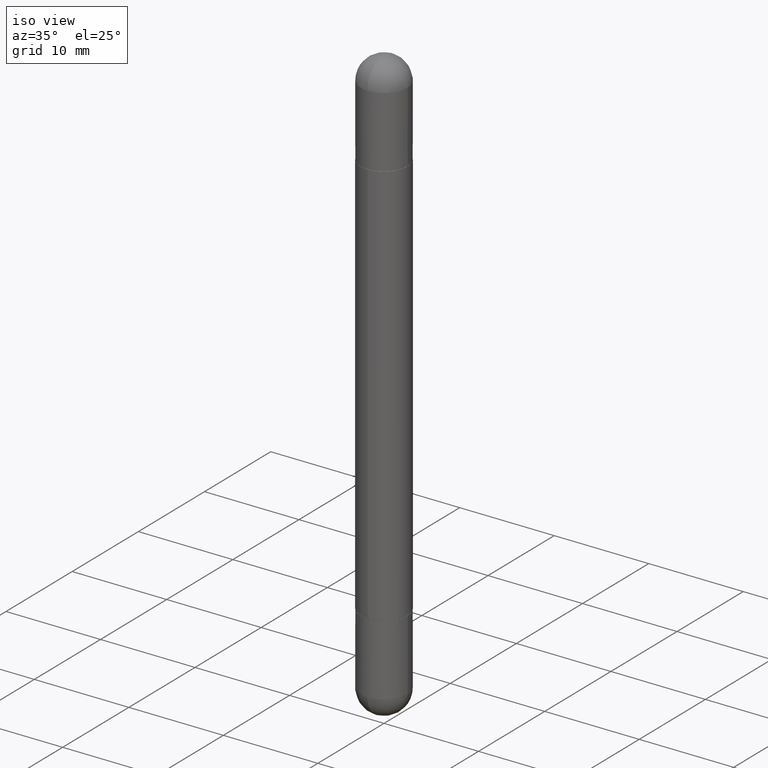
[diagram: clean part render]
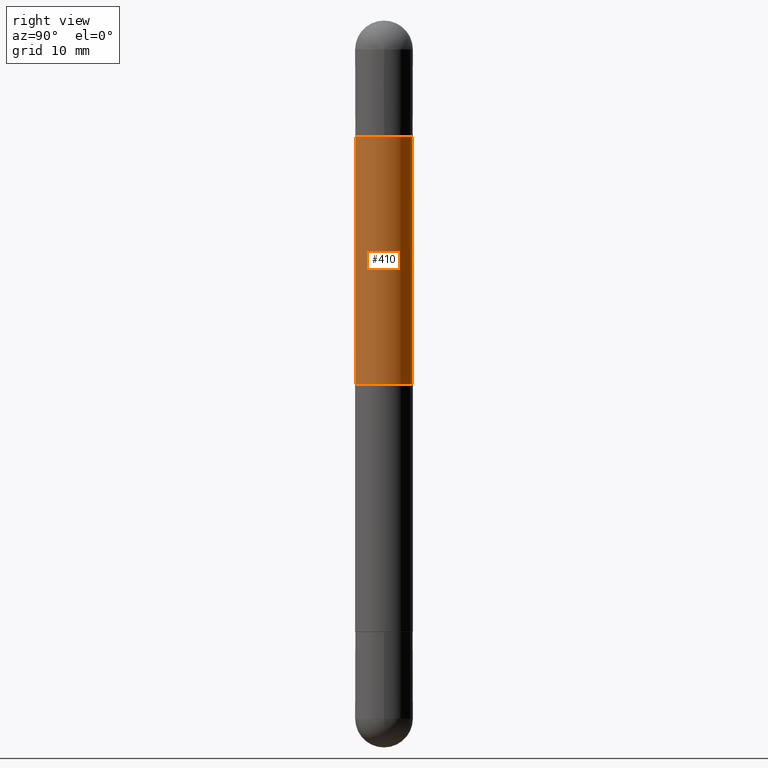
[diagram: tour spotlight — one face highlighted and labeled with its STEP entity id]
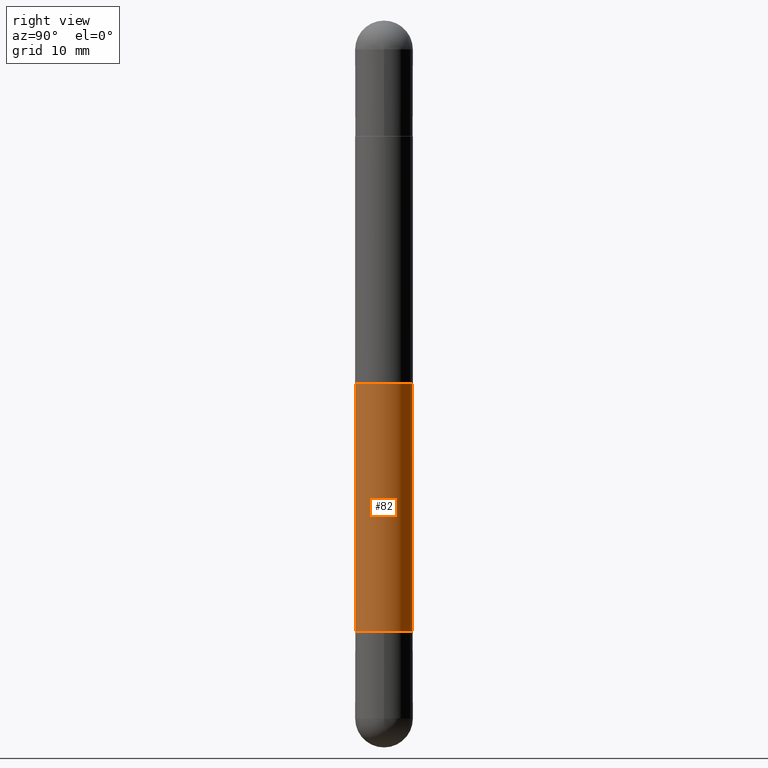
[diagram: tour spotlight — one face highlighted and labeled with its STEP entity id]
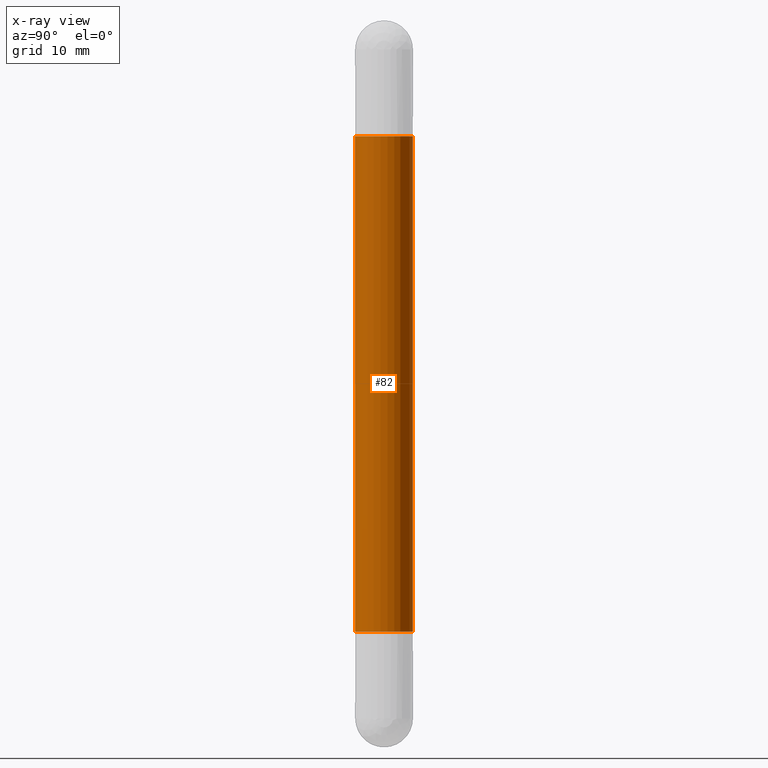
[diagram: x-ray of the same camera — body ghosted, this tour face saturated]
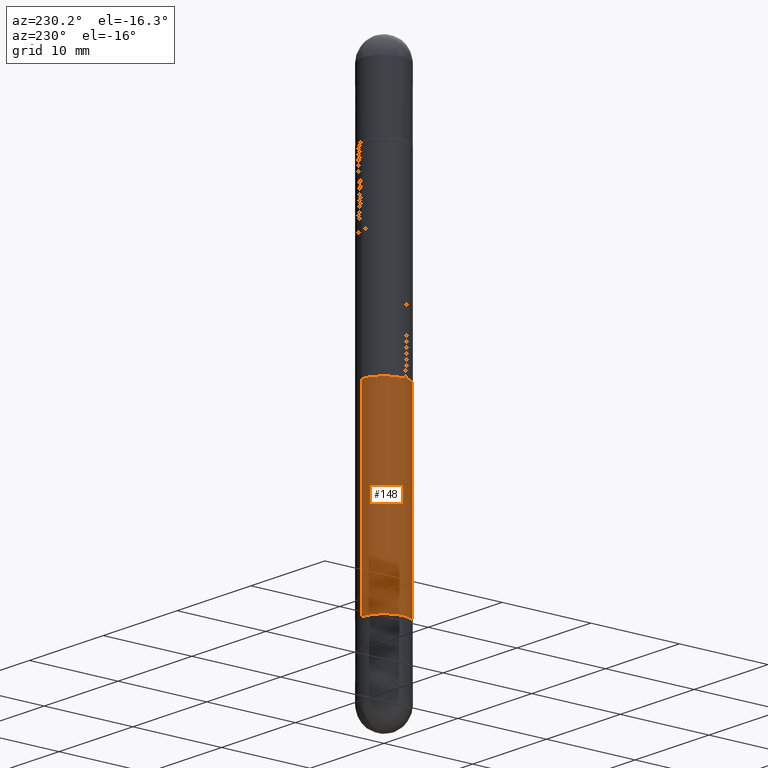
[diagram: tour spotlight — one face highlighted and labeled with its STEP entity id]
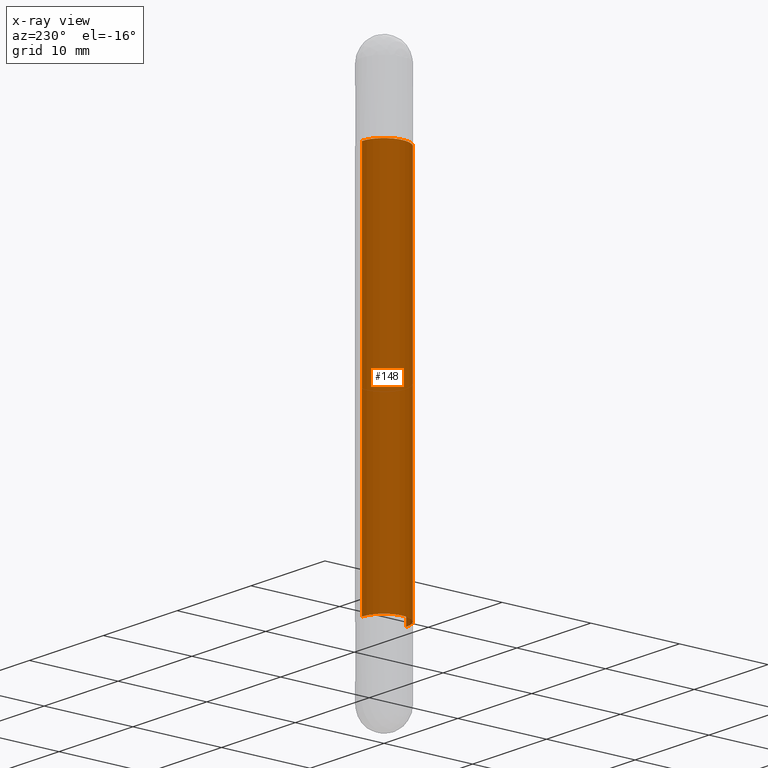
[diagram: x-ray of the same camera — body ghosted, this tour face saturated]
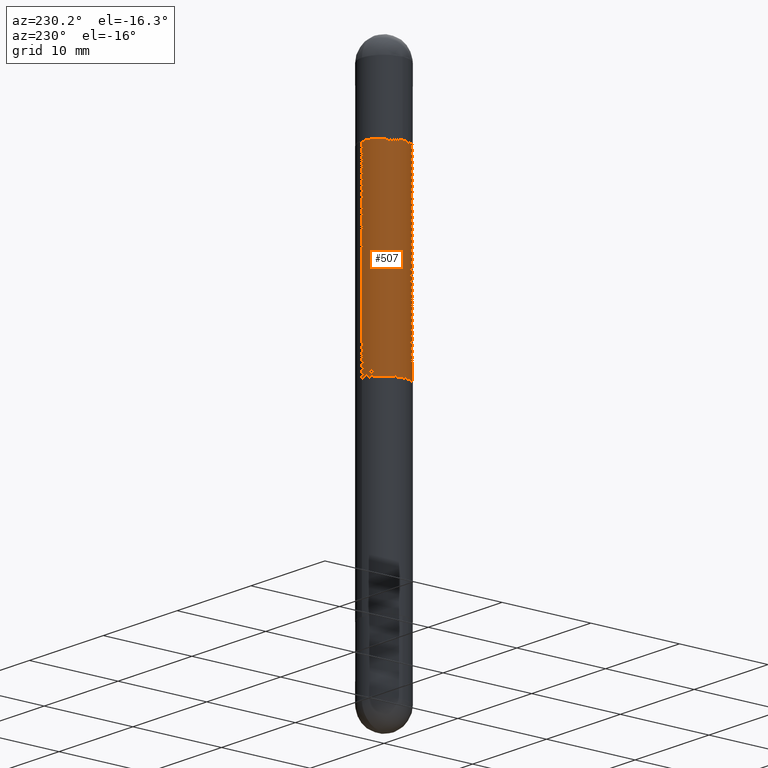
[diagram: tour spotlight — one face highlighted and labeled with its STEP entity id]
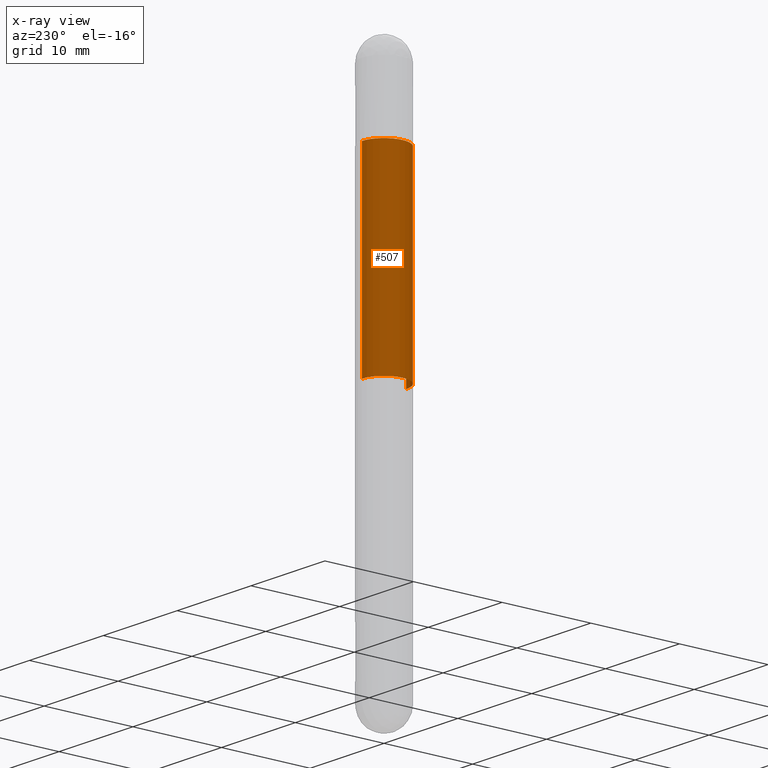
[diagram: x-ray of the same camera — body ghosted, this tour face saturated]
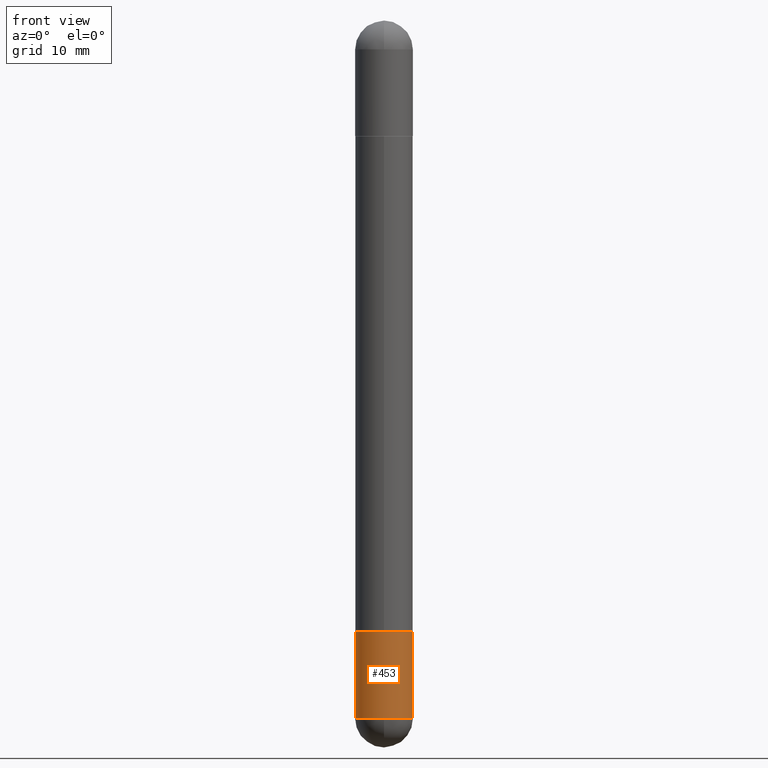
[diagram: tour spotlight — one face highlighted and labeled with its STEP entity id]
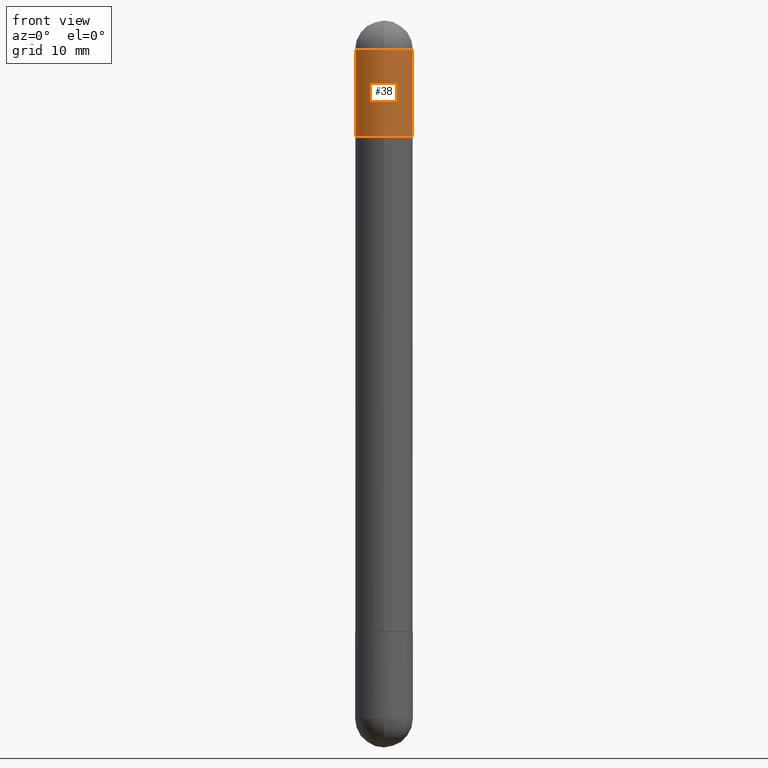
[diagram: tour spotlight — one face highlighted and labeled with its STEP entity id]
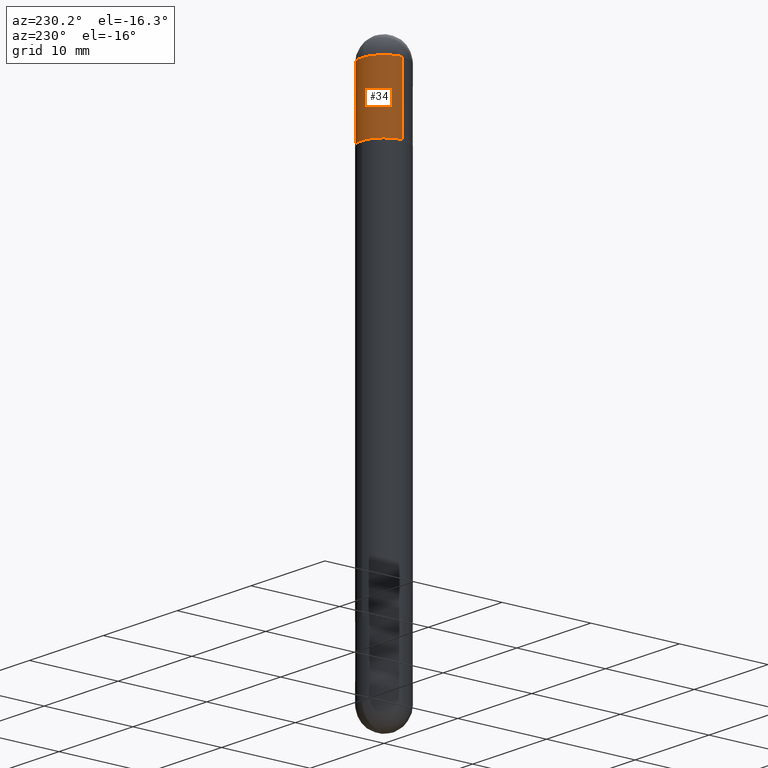
[diagram: tour spotlight — one face highlighted and labeled with its STEP entity id]
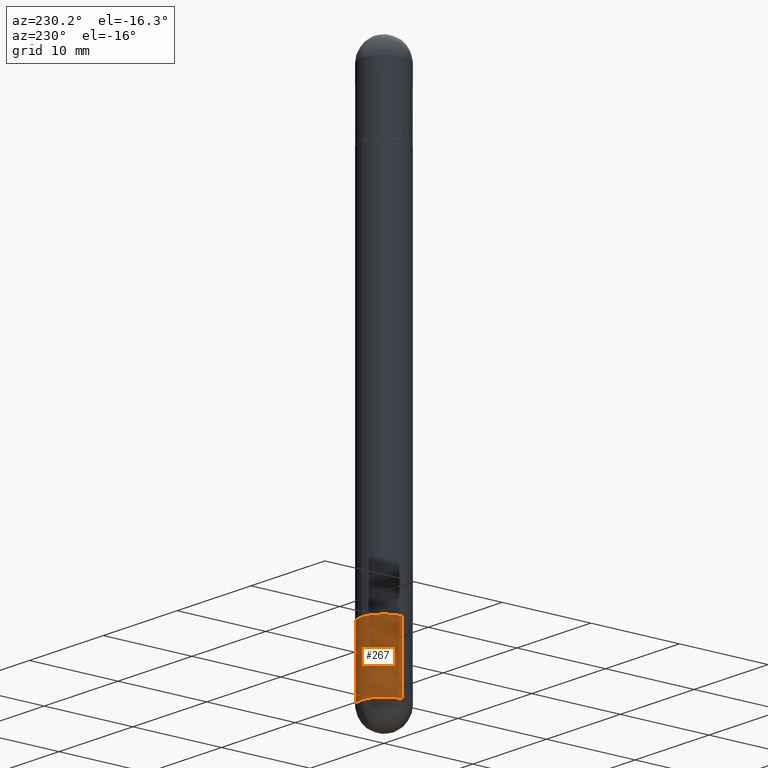
[diagram: tour spotlight — one face highlighted and labeled with its STEP entity id]
A machine part: a face-by-face anatomy tour. The part has 29 B-rep faces; the first image is the clean iso view, then the 8 largest visible faces are spotlighted one at a time (largest first), each with its STEP entity span.

Face 1 — right view, entity #410. In plain terms, the highlighted cylindrical surface (edge-blend (fillet) strip) has radius 2.5006 mm, axis along (-0, 0, -1).
Definition (entity closure, byte-faithful):
#11 = CARTESIAN_POINT ( 'NONE',  ( -6.874726756181635521E-16, -0.09845000000000754536, -0.3947000000000003839 ) ) ;
#20 = ORIENTED_EDGE ( 'NONE', *, *, #224, .F. ) ;
#70 = ORIENTED_EDGE ( 'NONE', *, *, #251, .F. ) ;
#86 = LINE ( 'NONE', #390, #814 ) ;
#101 = CARTESIAN_POINT ( 'NONE',  ( 6.754160278806080944E-16, 0.09845000000000013463, -2.480299999999999727 ) ) ;
#139 = VERTEX_POINT ( 'NONE', #11 ) ;
#224 = EDGE_CURVE ( 'NONE', #139, #440, #585, .T. ) ;
#230 = CARTESIAN_POINT ( 'NONE',  ( 6.754160278806588773E-16, 0.09844999999999579088, -1.240150000000000086 ) ) ;
#235 = EDGE_LOOP ( 'NONE', ( #70, #20, #533, #785 ) ) ;
#251 = EDGE_CURVE ( 'NONE', #440, #361, #407, .T. ) ;
#258 = DIRECTION ( 'NONE',  ( -0.000000000000000000, -0.000000000000000000, -1.000000000000000000 ) ) ;
#279 = CIRCLE ( 'NONE', #599, 0.09845000000000013463 ) ;
#329 = CARTESIAN_POINT ( 'NONE',  ( 3.033125776791602118E-29, -4.329419784973394178E-15, -1.240150000000000086 ) ) ;
#357 = DIRECTION ( 'NONE',  ( -2.445773315156716163E-29, 3.491045264664268947E-15, -1.000000000000000000 ) ) ;
#361 = VERTEX_POINT ( 'NONE', #230 ) ;
#390 = CARTESIAN_POINT ( 'NONE',  ( -6.874726756182137434E-16, -0.09845000000000013463, -2.480300000000001059 ) ) ;
#407 = LINE ( 'NONE', #101, #799 ) ;
#409 = CYLINDRICAL_SURFACE ( 'NONE', #786, 0.09845000000000013463 ) ;
#410 = ADVANCED_FACE ( 'NONE', ( #722 ), #409, .T. ) ;
#440 = VERTEX_POINT ( 'NONE', #592 ) ;
#499 = EDGE_CURVE ( 'NONE', #139, #560, #86, .T. ) ;
#503 = DIRECTION ( 'NONE',  ( -1.000000000000000000, 0.000000000000000000, 0.000000000000000000 ) ) ;
#527 = DIRECTION ( 'NONE',  ( -6.982962677686265922E-15, -1.000000000000000000, -3.468572871589965081E-15 ) ) ;
#533 = ORIENTED_EDGE ( 'NONE', *, *, #499, .T. ) ;
#560 = VERTEX_POINT ( 'NONE', #728 ) ;
#575 = EDGE_CURVE ( 'NONE', #361, #560, #279, .T. ) ;
#585 = CIRCLE ( 'NONE', #813, 0.09845000000000024565 ) ;
#592 = CARTESIAN_POINT ( 'NONE',  ( 6.754160278806600606E-16, 0.09844999999999295981, -0.3946999999999996622 ) ) ;
#599 = AXIS2_PLACEMENT_3D ( 'NONE', #329, #258, #503 ) ;
#602 = DIRECTION ( 'NONE',  ( -2.445773315156716163E-29, 3.491045264664269341E-15, -1.000000000000000000 ) ) ;
#647 = DIRECTION ( 'NONE',  ( -2.445773315156716163E-29, 3.491045264664268947E-15, -1.000000000000000000 ) ) ;
#659 = CARTESIAN_POINT ( 'NONE',  ( 5.100904826090848592E-29, -7.280924003983800483E-15, -0.3947000000000000508 ) ) ;
#665 = CARTESIAN_POINT ( 'NONE',  ( 0.000000000000000000, 0.000000000000000000, -2.480300000000000171 ) ) ;
#671 = DIRECTION ( 'NONE',  ( -6.982962677686265133E-15, -1.000000000000000000, -5.549716594543950441E-15 ) ) ;
#701 = DIRECTION ( 'NONE',  ( 2.445773315156716163E-29, -3.491045264664269341E-15, 1.000000000000000000 ) ) ;
#722 = FACE_OUTER_BOUND ( 'NONE', #235, .T. ) ;
#728 = CARTESIAN_POINT ( 'NONE',  ( -6.874726756181731170E-16, -0.09845000000000446450, -1.240150000000000086 ) ) ;
#785 = ORIENTED_EDGE ( 'NONE', *, *, #575, .F. ) ;
#786 = AXIS2_PLACEMENT_3D ( 'NONE', #665, #602, #671 ) ;
#799 = VECTOR ( 'NONE', #647, 39.37007874015748143 ) ;
#813 = AXIS2_PLACEMENT_3D ( 'NONE', #659, #701, #527 ) ;
#814 = VECTOR ( 'NONE', #357, 39.37007874015748143 ) ;

Face 2 — right view, entity #82. An x-ray twin of the same camera follows (body ghosted, this face saturated) — the face is partly hidden behind the body. In plain terms, the highlighted cylindrical surface (edge-blend (fillet) strip) has radius 2.5006 mm, axis along (-0, 0, -1).
Definition (entity closure, byte-faithful):
#19 = VECTOR ( 'NONE', #160, 39.37007874015748143 ) ;
#21 = AXIS2_PLACEMENT_3D ( 'NONE', #577, #496, #346 ) ;
#50 = DIRECTION ( 'NONE',  ( -6.982962677686265922E-15, -1.000000000000000000, -3.468572871589965081E-15 ) ) ;
#78 = AXIS2_PLACEMENT_3D ( 'NONE', #803, #118, #50 ) ;
#82 = ADVANCED_FACE ( 'NONE', ( #476 ), #417, .T. ) ;
#118 = DIRECTION ( 'NONE',  ( 2.445773315156716163E-29, -3.491045264664269341E-15, 1.000000000000000000 ) ) ;
#160 = DIRECTION ( 'NONE',  ( -2.445773315156716163E-29, 3.491045264664268947E-15, -1.000000000000000000 ) ) ;
#174 = CARTESIAN_POINT ( 'NONE',  ( -6.874726756181635521E-16, -0.09845000000000754536, -0.3947000000000003839 ) ) ;
#196 = CARTESIAN_POINT ( 'NONE',  ( -6.874726756181636507E-16, -0.09845000000000751761, -2.085599999999999898 ) ) ;
#205 = CARTESIAN_POINT ( 'NONE',  ( 6.754160278806600606E-16, 0.09844999999999295981, -0.3946999999999996622 ) ) ;
#223 = EDGE_CURVE ( 'NONE', #576, #264, #460, .T. ) ;
#250 = ORIENTED_EDGE ( 'NONE', *, *, #223, .F. ) ;
#264 = VERTEX_POINT ( 'NONE', #696 ) ;
#346 = DIRECTION ( 'NONE',  ( -6.982962677686265922E-15, -1.000000000000000000, 2.774858297271972065E-15 ) ) ;
#368 = VECTOR ( 'NONE', #373, 39.37007874015748143 ) ;
#373 = DIRECTION ( 'NONE',  ( -2.445773315156716163E-29, 3.491045264664268947E-15, -1.000000000000000000 ) ) ;
#374 = ORIENTED_EDGE ( 'NONE', *, *, #589, .T. ) ;
#397 = EDGE_LOOP ( 'NONE', ( #250, #607, #580, #374 ) ) ;
#404 = CIRCLE ( 'NONE', #78, 0.09845000000000024565 ) ;
#417 = CYLINDRICAL_SURFACE ( 'NONE', #626, 0.09845000000000013463 ) ;
#418 = VERTEX_POINT ( 'NONE', #174 ) ;
#460 = LINE ( 'NONE', #713, #19 ) ;
#463 = CARTESIAN_POINT ( 'NONE',  ( 0.000000000000000000, 0.000000000000000000, -2.480300000000000171 ) ) ;
#476 = FACE_OUTER_BOUND ( 'NONE', #397, .T. ) ;
#496 = DIRECTION ( 'NONE',  ( -2.445773315156716163E-29, 3.491045264664269341E-15, 1.000000000000000000 ) ) ;
#497 = LINE ( 'NONE', #609, #368 ) ;
#576 = VERTEX_POINT ( 'NONE', #205 ) ;
#577 = CARTESIAN_POINT ( 'NONE',  ( 5.100904826090848592E-29, -7.280924003983800483E-15, -2.085600000000000342 ) ) ;
#580 = ORIENTED_EDGE ( 'NONE', *, *, #679, .T. ) ;
#589 = EDGE_CURVE ( 'NONE', #808, #264, #640, .T. ) ;
#607 = ORIENTED_EDGE ( 'NONE', *, *, #615, .F. ) ;
#609 = CARTESIAN_POINT ( 'NONE',  ( -6.874726756182137434E-16, -0.09845000000000013463, -2.480300000000001059 ) ) ;
#615 = EDGE_CURVE ( 'NONE', #418, #576, #404, .T. ) ;
#626 = AXIS2_PLACEMENT_3D ( 'NONE', #463, #716, #788 ) ;
#640 = CIRCLE ( 'NONE', #21, 0.09845000000000024565 ) ;
#679 = EDGE_CURVE ( 'NONE', #418, #808, #497, .T. ) ;
#696 = CARTESIAN_POINT ( 'NONE',  ( 6.754160278806389586E-16, 0.09844999999999297369, -2.085600000000000342 ) ) ;
#713 = CARTESIAN_POINT ( 'NONE',  ( 6.754160278806080944E-16, 0.09845000000000013463, -2.480299999999999727 ) ) ;
#716 = DIRECTION ( 'NONE',  ( -2.445773315156716163E-29, 3.491045264664269341E-15, -1.000000000000000000 ) ) ;
#788 = DIRECTION ( 'NONE',  ( -6.982962677686265133E-15, -1.000000000000000000, -5.549716594543950441E-15 ) ) ;
#803 = CARTESIAN_POINT ( 'NONE',  ( 5.100904826090848592E-29, -7.280924003983800483E-15, -0.3947000000000000508 ) ) ;
#808 = VERTEX_POINT ( 'NONE', #196 ) ;

Face 3 — auxiliary view, entity #148. An x-ray twin of the same camera follows (body ghosted, this face saturated) — the face is partly hidden behind the body. In plain terms, the highlighted cylindrical surface (edge-blend (fillet) strip) has radius 2.5006 mm, axis along (-0, 0, -1).
Definition (entity closure, byte-faithful):
#5 = ORIENTED_EDGE ( 'NONE', *, *, #679, .F. ) ;
#19 = VECTOR ( 'NONE', #160, 39.37007874015748143 ) ;
#43 = ORIENTED_EDGE ( 'NONE', *, *, #223, .T. ) ;
#53 = EDGE_CURVE ( 'NONE', #264, #808, #276, .T. ) ;
#148 = ADVANCED_FACE ( 'NONE', ( #516 ), #595, .T. ) ;
#154 = CIRCLE ( 'NONE', #315, 0.09845000000000024565 ) ;
#160 = DIRECTION ( 'NONE',  ( -2.445773315156716163E-29, 3.491045264664268947E-15, -1.000000000000000000 ) ) ;
#174 = CARTESIAN_POINT ( 'NONE',  ( -6.874726756181635521E-16, -0.09845000000000754536, -0.3947000000000003839 ) ) ;
#196 = CARTESIAN_POINT ( 'NONE',  ( -6.874726756181636507E-16, -0.09845000000000751761, -2.085599999999999898 ) ) ;
#203 = ORIENTED_EDGE ( 'NONE', *, *, #53, .T. ) ;
#205 = CARTESIAN_POINT ( 'NONE',  ( 6.754160278806600606E-16, 0.09844999999999295981, -0.3946999999999996622 ) ) ;
#223 = EDGE_CURVE ( 'NONE', #576, #264, #460, .T. ) ;
#264 = VERTEX_POINT ( 'NONE', #696 ) ;
#276 = CIRCLE ( 'NONE', #666, 0.09845000000000024565 ) ;
#295 = DIRECTION ( 'NONE',  ( -6.982962677686265922E-15, -1.000000000000000000, 2.774858297271972065E-15 ) ) ;
#315 = AXIS2_PLACEMENT_3D ( 'NONE', #708, #341, #584 ) ;
#341 = DIRECTION ( 'NONE',  ( 2.445773315156716163E-29, -3.491045264664269341E-15, 1.000000000000000000 ) ) ;
#345 = ORIENTED_EDGE ( 'NONE', *, *, #644, .F. ) ;
#368 = VECTOR ( 'NONE', #373, 39.37007874015748143 ) ;
#373 = DIRECTION ( 'NONE',  ( -2.445773315156716163E-29, 3.491045264664268947E-15, -1.000000000000000000 ) ) ;
#380 = AXIS2_PLACEMENT_3D ( 'NONE', #777, #706, #660 ) ;
#416 = DIRECTION ( 'NONE',  ( -2.445773315156716163E-29, 3.491045264664269341E-15, 1.000000000000000000 ) ) ;
#418 = VERTEX_POINT ( 'NONE', #174 ) ;
#460 = LINE ( 'NONE', #713, #19 ) ;
#497 = LINE ( 'NONE', #609, #368 ) ;
#516 = FACE_OUTER_BOUND ( 'NONE', #632, .T. ) ;
#534 = CARTESIAN_POINT ( 'NONE',  ( 5.100904826090848592E-29, -7.280924003983800483E-15, -2.085600000000000342 ) ) ;
#576 = VERTEX_POINT ( 'NONE', #205 ) ;
#584 = DIRECTION ( 'NONE',  ( -6.982962677686265922E-15, -1.000000000000000000, -3.468572871589965081E-15 ) ) ;
#595 = CYLINDRICAL_SURFACE ( 'NONE', #380, 0.09845000000000013463 ) ;
#609 = CARTESIAN_POINT ( 'NONE',  ( -6.874726756182137434E-16, -0.09845000000000013463, -2.480300000000001059 ) ) ;
#632 = EDGE_LOOP ( 'NONE', ( #345, #43, #203, #5 ) ) ;
#644 = EDGE_CURVE ( 'NONE', #576, #418, #154, .T. ) ;
#660 = DIRECTION ( 'NONE',  ( -6.982962677686265133E-15, -1.000000000000000000, -5.549716594543950441E-15 ) ) ;
#666 = AXIS2_PLACEMENT_3D ( 'NONE', #534, #416, #295 ) ;
#679 = EDGE_CURVE ( 'NONE', #418, #808, #497, .T. ) ;
#696 = CARTESIAN_POINT ( 'NONE',  ( 6.754160278806389586E-16, 0.09844999999999297369, -2.085600000000000342 ) ) ;
#706 = DIRECTION ( 'NONE',  ( -2.445773315156716163E-29, 3.491045264664269341E-15, -1.000000000000000000 ) ) ;
#708 = CARTESIAN_POINT ( 'NONE',  ( 5.100904826090848592E-29, -7.280924003983800483E-15, -0.3947000000000000508 ) ) ;
#713 = CARTESIAN_POINT ( 'NONE',  ( 6.754160278806080944E-16, 0.09845000000000013463, -2.480299999999999727 ) ) ;
#777 = CARTESIAN_POINT ( 'NONE',  ( 0.000000000000000000, 0.000000000000000000, -2.480300000000000171 ) ) ;
#808 = VERTEX_POINT ( 'NONE', #196 ) ;

Face 4 — auxiliary view, entity #507. An x-ray twin of the same camera follows (body ghosted, this face saturated) — the face is partly hidden behind the body. In plain terms, the highlighted cylindrical surface (edge-blend (fillet) strip) has radius 2.5006 mm, axis along (-0, 0, -1).
Definition (entity closure, byte-faithful):
#11 = CARTESIAN_POINT ( 'NONE',  ( -6.874726756181635521E-16, -0.09845000000000754536, -0.3947000000000003839 ) ) ;
#40 = CARTESIAN_POINT ( 'NONE',  ( 3.033125776791602118E-29, -4.329419784973394178E-15, -1.240150000000000086 ) ) ;
#41 = DIRECTION ( 'NONE',  ( -2.445773315156716163E-29, 3.491045264664269341E-15, -1.000000000000000000 ) ) ;
#86 = LINE ( 'NONE', #390, #814 ) ;
#101 = CARTESIAN_POINT ( 'NONE',  ( 6.754160278806080944E-16, 0.09845000000000013463, -2.480299999999999727 ) ) ;
#139 = VERTEX_POINT ( 'NONE', #11 ) ;
#161 = AXIS2_PLACEMENT_3D ( 'NONE', #40, #807, #745 ) ;
#181 = ORIENTED_EDGE ( 'NONE', *, *, #499, .F. ) ;
#184 = DIRECTION ( 'NONE',  ( -6.982962677686265922E-15, -1.000000000000000000, -3.468572871589965081E-15 ) ) ;
#230 = CARTESIAN_POINT ( 'NONE',  ( 6.754160278806588773E-16, 0.09844999999999579088, -1.240150000000000086 ) ) ;
#232 = ORIENTED_EDGE ( 'NONE', *, *, #672, .F. ) ;
#251 = EDGE_CURVE ( 'NONE', #440, #361, #407, .T. ) ;
#357 = DIRECTION ( 'NONE',  ( -2.445773315156716163E-29, 3.491045264664268947E-15, -1.000000000000000000 ) ) ;
#360 = EDGE_CURVE ( 'NONE', #560, #361, #501, .T. ) ;
#361 = VERTEX_POINT ( 'NONE', #230 ) ;
#390 = CARTESIAN_POINT ( 'NONE',  ( -6.874726756182137434E-16, -0.09845000000000013463, -2.480300000000001059 ) ) ;
#407 = LINE ( 'NONE', #101, #799 ) ;
#412 = AXIS2_PLACEMENT_3D ( 'NONE', #430, #686, #184 ) ;
#430 = CARTESIAN_POINT ( 'NONE',  ( 5.100904826090848592E-29, -7.280924003983800483E-15, -0.3947000000000000508 ) ) ;
#440 = VERTEX_POINT ( 'NONE', #592 ) ;
#469 = ORIENTED_EDGE ( 'NONE', *, *, #251, .T. ) ;
#499 = EDGE_CURVE ( 'NONE', #139, #560, #86, .T. ) ;
#501 = CIRCLE ( 'NONE', #161, 0.09845000000000013463 ) ;
#507 = ADVANCED_FACE ( 'NONE', ( #668 ), #529, .T. ) ;
#529 = CYLINDRICAL_SURFACE ( 'NONE', #691, 0.09845000000000013463 ) ;
#560 = VERTEX_POINT ( 'NONE', #728 ) ;
#592 = CARTESIAN_POINT ( 'NONE',  ( 6.754160278806600606E-16, 0.09844999999999295981, -0.3946999999999996622 ) ) ;
#604 = DIRECTION ( 'NONE',  ( -6.982962677686265133E-15, -1.000000000000000000, -5.549716594543950441E-15 ) ) ;
#638 = ORIENTED_EDGE ( 'NONE', *, *, #360, .F. ) ;
#647 = DIRECTION ( 'NONE',  ( -2.445773315156716163E-29, 3.491045264664268947E-15, -1.000000000000000000 ) ) ;
#668 = FACE_OUTER_BOUND ( 'NONE', #773, .T. ) ;
#672 = EDGE_CURVE ( 'NONE', #440, #139, #750, .T. ) ;
#686 = DIRECTION ( 'NONE',  ( 2.445773315156716163E-29, -3.491045264664269341E-15, 1.000000000000000000 ) ) ;
#691 = AXIS2_PLACEMENT_3D ( 'NONE', #734, #41, #604 ) ;
#728 = CARTESIAN_POINT ( 'NONE',  ( -6.874726756181731170E-16, -0.09845000000000446450, -1.240150000000000086 ) ) ;
#734 = CARTESIAN_POINT ( 'NONE',  ( 0.000000000000000000, 0.000000000000000000, -2.480300000000000171 ) ) ;
#745 = DIRECTION ( 'NONE',  ( -1.000000000000000000, 0.000000000000000000, 0.000000000000000000 ) ) ;
#750 = CIRCLE ( 'NONE', #412, 0.09845000000000024565 ) ;
#773 = EDGE_LOOP ( 'NONE', ( #232, #469, #638, #181 ) ) ;
#799 = VECTOR ( 'NONE', #647, 39.37007874015748143 ) ;
#807 = DIRECTION ( 'NONE',  ( -0.000000000000000000, -0.000000000000000000, -1.000000000000000000 ) ) ;
#814 = VECTOR ( 'NONE', #357, 39.37007874015748143 ) ;

Face 5 — front view, entity #453. In plain terms, the highlighted cylindrical surface (edge-blend (fillet) strip) has radius 2.5006 mm, axis along (-0, 0, 1).
Definition (entity closure, byte-faithful):
#24 = CARTESIAN_POINT ( 'NONE',  ( -0.09844999999999999585, -7.101225570921008942E-15, -2.086600000000000232 ) ) ;
#31 = AXIS2_PLACEMENT_3D ( 'NONE', #707, #215, #168 ) ;
#56 = FACE_OUTER_BOUND ( 'NONE', #191, .T. ) ;
#61 = CARTESIAN_POINT ( 'NONE',  ( 0.09844999999999999585, -7.972797637248321554E-15, -2.086600000000000232 ) ) ;
#69 = DIRECTION ( 'NONE',  ( -2.445468806185136877E-29, 3.491481338843145188E-15, 1.000000000000000000 ) ) ;
#91 = AXIS2_PLACEMENT_3D ( 'NONE', #314, #424, #681 ) ;
#116 = DIRECTION ( 'NONE',  ( -2.445468806185136877E-29, 3.491481338843145188E-15, 1.000000000000000000 ) ) ;
#119 = CYLINDRICAL_SURFACE ( 'NONE', #122, 0.09845000000000000973 ) ;
#120 = CIRCLE ( 'NONE', #31, 0.09844999999999999585 ) ;
#122 = AXIS2_PLACEMENT_3D ( 'NONE', #375, #379, #622 ) ;
#129 = CARTESIAN_POINT ( 'NONE',  ( 5.824739876012068780E-29, -8.316184826923546689E-15, -2.381850000000000467 ) ) ;
#131 = CARTESIAN_POINT ( 'NONE',  ( -6.995293233557624958E-16, -0.09845000000000865559, -2.381850000000000023 ) ) ;
#156 = ORIENTED_EDGE ( 'NONE', *, *, #428, .T. ) ;
#162 = ORIENTED_EDGE ( 'NONE', *, *, #274, .T. ) ;
#168 = DIRECTION ( 'NONE',  ( 1.000000000000000000, -6.982962677686265922E-15, 0.000000000000000000 ) ) ;
#191 = EDGE_LOOP ( 'NONE', ( #611, #162, #583, #156, #376 ) ) ;
#215 = DIRECTION ( 'NONE',  ( -2.445468806185136597E-29, 3.491481338843145583E-15, 1.000000000000000000 ) ) ;
#220 = VERTEX_POINT ( 'NONE', #24 ) ;
#274 = EDGE_CURVE ( 'NONE', #574, #675, #411, .T. ) ;
#306 = DIRECTION ( 'NONE',  ( 1.000000000000000000, -6.982962677686273810E-15, 0.000000000000000000 ) ) ;
#308 = LINE ( 'NONE', #550, #569 ) ;
#314 = CARTESIAN_POINT ( 'NONE',  ( 5.824739876012068780E-29, -8.316184826923546689E-15, -2.381850000000000467 ) ) ;
#327 = VERTEX_POINT ( 'NONE', #61 ) ;
#330 = EDGE_CURVE ( 'NONE', #675, #494, #403, .T. ) ;
#362 = LINE ( 'NONE', #427, #704 ) ;
#375 = CARTESIAN_POINT ( 'NONE',  ( 0.000000000000000000, 0.000000000000000000, 0.000000000000000000 ) ) ;
#376 = ORIENTED_EDGE ( 'NONE', *, *, #406, .F. ) ;
#379 = DIRECTION ( 'NONE',  ( -2.445468806185136597E-29, 3.491481338843145583E-15, 1.000000000000000000 ) ) ;
#403 = CIRCLE ( 'NONE', #515, 0.09845000000000000973 ) ;
#406 = EDGE_CURVE ( 'NONE', #220, #327, #120, .T. ) ;
#411 = CIRCLE ( 'NONE', #91, 0.09845000000000000973 ) ;
#424 = DIRECTION ( 'NONE',  ( -2.445468806185136597E-29, 3.491481338843145583E-15, 1.000000000000000000 ) ) ;
#427 = CARTESIAN_POINT ( 'NONE',  ( 0.09845000000000000973, -6.874726756182130531E-16, 4.800596035771099214E-30 ) ) ;
#428 = EDGE_CURVE ( 'NONE', #494, #327, #362, .T. ) ;
#453 = ADVANCED_FACE ( 'NONE', ( #56 ), #119, .T. ) ;
#494 = VERTEX_POINT ( 'NONE', #563 ) ;
#515 = AXIS2_PLACEMENT_3D ( 'NONE', #129, #535, #306 ) ;
#535 = DIRECTION ( 'NONE',  ( -2.445468806185136597E-29, 3.491481338843145583E-15, 1.000000000000000000 ) ) ;
#550 = CARTESIAN_POINT ( 'NONE',  ( -0.09845000000000000973, 6.995293233558187021E-16, -4.842691596355954742E-30 ) ) ;
#563 = CARTESIAN_POINT ( 'NONE',  ( 0.09845000000000000973, -8.488227569895042768E-15, -2.381850000000000467 ) ) ;
#569 = VECTOR ( 'NONE', #69, 39.37007874015748143 ) ;
#574 = VERTEX_POINT ( 'NONE', #641 ) ;
#583 = ORIENTED_EDGE ( 'NONE', *, *, #330, .T. ) ;
#611 = ORIENTED_EDGE ( 'NONE', *, *, #767, .F. ) ;
#622 = DIRECTION ( 'NONE',  ( 1.000000000000000000, -6.982962677686266711E-15, 4.876176775795935793E-29 ) ) ;
#641 = CARTESIAN_POINT ( 'NONE',  ( -0.09845000000000000973, -7.101225570921009731E-15, -2.381850000000000467 ) ) ;
#675 = VERTEX_POINT ( 'NONE', #131 ) ;
#681 = DIRECTION ( 'NONE',  ( 1.000000000000000000, -6.982962677686273810E-15, 0.000000000000000000 ) ) ;
#704 = VECTOR ( 'NONE', #116, 39.37007874015748143 ) ;
#707 = CARTESIAN_POINT ( 'NONE',  ( 5.102715210985907397E-29, -7.285324961630108994E-15, -2.086600000000000232 ) ) ;
#767 = EDGE_CURVE ( 'NONE', #574, #220, #308, .T. ) ;

Face 6 — front view, entity #38. In plain terms, the highlighted cylindrical surface (edge-blend (fillet) strip) has radius 2.5006 mm, axis along (-0, 0, -1).
Definition (entity closure, byte-faithful):
#2 = VERTEX_POINT ( 'NONE', #238 ) ;
#38 = ADVANCED_FACE ( 'NONE', ( #228 ), #729, .T. ) ;
#48 = CIRCLE ( 'NONE', #715, 0.09844999999999999585 ) ;
#102 = CARTESIAN_POINT ( 'NONE',  ( 0.09844999999999999585, -7.972797637248321554E-15, -0.3936999999999999389 ) ) ;
#105 = CIRCLE ( 'NONE', #610, 0.09845000000000000973 ) ;
#112 = DIRECTION ( 'NONE',  ( -2.445468806185136877E-29, 3.491481338843145188E-15, -1.000000000000000000 ) ) ;
#127 = DIRECTION ( 'NONE',  ( 1.000000000000000000, -6.982962677686266711E-15, 0.000000000000000000 ) ) ;
#133 = DIRECTION ( 'NONE',  ( 2.445468806185136597E-29, -3.491481338843145583E-15, 1.000000000000000000 ) ) ;
#147 = EDGE_LOOP ( 'NONE', ( #513, #222, #474, #246, #790 ) ) ;
#176 = CARTESIAN_POINT ( 'NONE',  ( 0.000000000000000000, 0.000000000000000000, -2.480300000000000171 ) ) ;
#179 = CARTESIAN_POINT ( 'NONE',  ( 5.824739876012068780E-29, -8.316184826923546689E-15, -0.09844999999999987095 ) ) ;
#222 = ORIENTED_EDGE ( 'NONE', *, *, #635, .T. ) ;
#227 = DIRECTION ( 'NONE',  ( 2.445468806185136597E-29, -3.491481338843145583E-15, 1.000000000000000000 ) ) ;
#228 = FACE_OUTER_BOUND ( 'NONE', #147, .T. ) ;
#238 = CARTESIAN_POINT ( 'NONE',  ( -0.09845000000000000973, -7.125338866396221621E-15, -0.09844999999999987095 ) ) ;
#246 = ORIENTED_EDGE ( 'NONE', *, *, #522, .F. ) ;
#289 = CARTESIAN_POINT ( 'NONE',  ( 0.09845000000000000973, -6.874726756182130531E-16, -2.480300000000000171 ) ) ;
#293 = DIRECTION ( 'NONE',  ( -2.445468806185136877E-29, 3.491481338843145188E-15, -1.000000000000000000 ) ) ;
#303 = VERTEX_POINT ( 'NONE', #543 ) ;
#319 = CARTESIAN_POINT ( 'NONE',  ( 0.09845000000000000973, -8.488227569895042768E-15, -0.09844999999999987095 ) ) ;
#352 = EDGE_CURVE ( 'NONE', #816, #449, #48, .T. ) ;
#355 = DIRECTION ( 'NONE',  ( -2.445468806185136597E-29, 3.491481338843145583E-15, -1.000000000000000000 ) ) ;
#402 = AXIS2_PLACEMENT_3D ( 'NONE', #176, #355, #127 ) ;
#435 = CARTESIAN_POINT ( 'NONE',  ( -0.09844999999999999585, -7.125338866396220043E-15, -0.3936999999999999389 ) ) ;
#437 = EDGE_CURVE ( 'NONE', #2, #303, #683, .T. ) ;
#441 = VECTOR ( 'NONE', #293, 39.37007874015748143 ) ;
#449 = VERTEX_POINT ( 'NONE', #102 ) ;
#473 = DIRECTION ( 'NONE',  ( 1.000000000000000000, -6.982962677686273810E-15, 0.000000000000000000 ) ) ;
#474 = ORIENTED_EDGE ( 'NONE', *, *, #352, .T. ) ;
#486 = VERTEX_POINT ( 'NONE', #319 ) ;
#490 = VECTOR ( 'NONE', #112, 39.37007874015748143 ) ;
#513 = ORIENTED_EDGE ( 'NONE', *, *, #437, .F. ) ;
#522 = EDGE_CURVE ( 'NONE', #486, #449, #606, .T. ) ;
#539 = DIRECTION ( 'NONE',  ( 1.000000000000000000, -6.982962677686265922E-15, 0.000000000000000000 ) ) ;
#543 = CARTESIAN_POINT ( 'NONE',  ( -6.754160278805513950E-16, -0.09845000000000865559, -0.09845000000000021789 ) ) ;
#545 = EDGE_CURVE ( 'NONE', #303, #486, #105, .T. ) ;
#551 = CARTESIAN_POINT ( 'NONE',  ( 5.824739876012068780E-29, -8.316184826923546689E-15, -0.09844999999999987095 ) ) ;
#557 = AXIS2_PLACEMENT_3D ( 'NONE', #551, #133, #725 ) ;
#606 = LINE ( 'NONE', #289, #441 ) ;
#608 = LINE ( 'NONE', #677, #490 ) ;
#610 = AXIS2_PLACEMENT_3D ( 'NONE', #179, #227, #473 ) ;
#614 = CARTESIAN_POINT ( 'NONE',  ( 5.102715210985907397E-29, -7.285324961630108994E-15, -0.3936999999999999389 ) ) ;
#619 = DIRECTION ( 'NONE',  ( 2.445468806185136597E-29, -3.491481338843145583E-15, 1.000000000000000000 ) ) ;
#635 = EDGE_CURVE ( 'NONE', #2, #816, #608, .T. ) ;
#677 = CARTESIAN_POINT ( 'NONE',  ( -0.09845000000000000973, 6.754160278806074041E-16, -2.480300000000000171 ) ) ;
#683 = CIRCLE ( 'NONE', #557, 0.09845000000000000973 ) ;
#715 = AXIS2_PLACEMENT_3D ( 'NONE', #614, #619, #539 ) ;
#725 = DIRECTION ( 'NONE',  ( 1.000000000000000000, -6.982962677686273810E-15, 0.000000000000000000 ) ) ;
#729 = CYLINDRICAL_SURFACE ( 'NONE', #402, 0.09845000000000000973 ) ;
#790 = ORIENTED_EDGE ( 'NONE', *, *, #545, .F. ) ;
#816 = VERTEX_POINT ( 'NONE', #435 ) ;

Face 7 — auxiliary view, entity #34. In plain terms, the highlighted cylindrical surface (edge-blend (fillet) strip) has radius 2.5006 mm, axis along (-0, 0, -1).
Definition (entity closure, byte-faithful):
#2 = VERTEX_POINT ( 'NONE', #238 ) ;
#27 = DIRECTION ( 'NONE',  ( -2.445468806185136597E-29, 3.491481338843145583E-15, -1.000000000000000000 ) ) ;
#34 = ADVANCED_FACE ( 'NONE', ( #126 ), #347, .T. ) ;
#67 = EDGE_CURVE ( 'NONE', #97, #2, #770, .T. ) ;
#97 = VERTEX_POINT ( 'NONE', #505 ) ;
#102 = CARTESIAN_POINT ( 'NONE',  ( 0.09844999999999999585, -7.972797637248321554E-15, -0.3936999999999999389 ) ) ;
#112 = DIRECTION ( 'NONE',  ( -2.445468806185136877E-29, 3.491481338843145188E-15, -1.000000000000000000 ) ) ;
#115 = ORIENTED_EDGE ( 'NONE', *, *, #720, .T. ) ;
#121 = CIRCLE ( 'NONE', #787, 0.09844999999999999585 ) ;
#126 = FACE_OUTER_BOUND ( 'NONE', #358, .T. ) ;
#164 = EDGE_CURVE ( 'NONE', #486, #97, #556, .T. ) ;
#233 = DIRECTION ( 'NONE',  ( 1.000000000000000000, -6.982962677686273810E-15, 0.000000000000000000 ) ) ;
#237 = DIRECTION ( 'NONE',  ( 2.445468806185136597E-29, -3.491481338843145583E-15, 1.000000000000000000 ) ) ;
#238 = CARTESIAN_POINT ( 'NONE',  ( -0.09845000000000000973, -7.125338866396221621E-15, -0.09844999999999987095 ) ) ;
#272 = ORIENTED_EDGE ( 'NONE', *, *, #164, .F. ) ;
#277 = AXIS2_PLACEMENT_3D ( 'NONE', #396, #467, #348 ) ;
#289 = CARTESIAN_POINT ( 'NONE',  ( 0.09845000000000000973, -6.874726756182130531E-16, -2.480300000000000171 ) ) ;
#293 = DIRECTION ( 'NONE',  ( -2.445468806185136877E-29, 3.491481338843145188E-15, -1.000000000000000000 ) ) ;
#311 = DIRECTION ( 'NONE',  ( 1.000000000000000000, -6.982962677686265922E-15, 0.000000000000000000 ) ) ;
#319 = CARTESIAN_POINT ( 'NONE',  ( 0.09845000000000000973, -8.488227569895042768E-15, -0.09844999999999987095 ) ) ;
#347 = CYLINDRICAL_SURFACE ( 'NONE', #553, 0.09845000000000000973 ) ;
#348 = DIRECTION ( 'NONE',  ( 1.000000000000000000, -6.982962677686273810E-15, 0.000000000000000000 ) ) ;
#358 = EDGE_LOOP ( 'NONE', ( #680, #519, #272, #747, #115 ) ) ;
#396 = CARTESIAN_POINT ( 'NONE',  ( 5.824739876012068780E-29, -8.316184826923546689E-15, -0.09844999999999987095 ) ) ;
#435 = CARTESIAN_POINT ( 'NONE',  ( -0.09844999999999999585, -7.125338866396220043E-15, -0.3936999999999999389 ) ) ;
#441 = VECTOR ( 'NONE', #293, 39.37007874015748143 ) ;
#449 = VERTEX_POINT ( 'NONE', #102 ) ;
#467 = DIRECTION ( 'NONE',  ( 2.445468806185136597E-29, -3.491481338843145583E-15, 1.000000000000000000 ) ) ;
#480 = DIRECTION ( 'NONE',  ( 2.445468806185136597E-29, -3.491481338843145583E-15, 1.000000000000000000 ) ) ;
#486 = VERTEX_POINT ( 'NONE', #319 ) ;
#490 = VECTOR ( 'NONE', #112, 39.37007874015748143 ) ;
#505 = CARTESIAN_POINT ( 'NONE',  ( 6.874726756182700483E-16, 0.09844999999999154427, -0.09844999999999953788 ) ) ;
#514 = AXIS2_PLACEMENT_3D ( 'NONE', #796, #480, #233 ) ;
#519 = ORIENTED_EDGE ( 'NONE', *, *, #67, .F. ) ;
#522 = EDGE_CURVE ( 'NONE', #486, #449, #606, .T. ) ;
#530 = CARTESIAN_POINT ( 'NONE',  ( 0.000000000000000000, 0.000000000000000000, -2.480300000000000171 ) ) ;
#553 = AXIS2_PLACEMENT_3D ( 'NONE', #530, #27, #717 ) ;
#556 = CIRCLE ( 'NONE', #277, 0.09845000000000000973 ) ;
#606 = LINE ( 'NONE', #289, #441 ) ;
#608 = LINE ( 'NONE', #677, #490 ) ;
#635 = EDGE_CURVE ( 'NONE', #2, #816, #608, .T. ) ;
#677 = CARTESIAN_POINT ( 'NONE',  ( -0.09845000000000000973, 6.754160278806074041E-16, -2.480300000000000171 ) ) ;
#678 = CARTESIAN_POINT ( 'NONE',  ( 5.102715210985907397E-29, -7.285324961630108994E-15, -0.3936999999999999389 ) ) ;
#680 = ORIENTED_EDGE ( 'NONE', *, *, #635, .F. ) ;
#717 = DIRECTION ( 'NONE',  ( 1.000000000000000000, -6.982962677686266711E-15, 0.000000000000000000 ) ) ;
#720 = EDGE_CURVE ( 'NONE', #449, #816, #121, .T. ) ;
#747 = ORIENTED_EDGE ( 'NONE', *, *, #522, .T. ) ;
#770 = CIRCLE ( 'NONE', #514, 0.09845000000000000973 ) ;
#787 = AXIS2_PLACEMENT_3D ( 'NONE', #678, #237, #311 ) ;
#796 = CARTESIAN_POINT ( 'NONE',  ( 5.824739876012068780E-29, -8.316184826923546689E-15, -0.09844999999999987095 ) ) ;
#816 = VERTEX_POINT ( 'NONE', #435 ) ;

Face 8 — auxiliary view, entity #267. In plain terms, the highlighted cylindrical surface (edge-blend (fillet) strip) has radius 2.5006 mm, axis along (-0, 0, 1).
Definition (entity closure, byte-faithful):
#16 = CARTESIAN_POINT ( 'NONE',  ( 5.824739876012068780E-29, -8.316184826923546689E-15, -2.381850000000000467 ) ) ;
#18 = AXIS2_PLACEMENT_3D ( 'NONE', #71, #106, #781 ) ;
#24 = CARTESIAN_POINT ( 'NONE',  ( -0.09844999999999999585, -7.101225570921008942E-15, -2.086600000000000232 ) ) ;
#61 = CARTESIAN_POINT ( 'NONE',  ( 0.09844999999999999585, -7.972797637248321554E-15, -2.086600000000000232 ) ) ;
#62 = AXIS2_PLACEMENT_3D ( 'NONE', #548, #240, #732 ) ;
#69 = DIRECTION ( 'NONE',  ( -2.445468806185136877E-29, 3.491481338843145188E-15, 1.000000000000000000 ) ) ;
#71 = CARTESIAN_POINT ( 'NONE',  ( 5.824739876012068780E-29, -8.316184826923546689E-15, -2.381850000000000467 ) ) ;
#74 = EDGE_CURVE ( 'NONE', #494, #322, #173, .T. ) ;
#98 = EDGE_CURVE ( 'NONE', #322, #574, #733, .T. ) ;
#106 = DIRECTION ( 'NONE',  ( -2.445468806185136597E-29, 3.491481338843145583E-15, 1.000000000000000000 ) ) ;
#116 = DIRECTION ( 'NONE',  ( -2.445468806185136877E-29, 3.491481338843145188E-15, 1.000000000000000000 ) ) ;
#137 = EDGE_LOOP ( 'NONE', ( #354, #349, #528, #339, #738 ) ) ;
#144 = FACE_OUTER_BOUND ( 'NONE', #137, .T. ) ;
#173 = CIRCLE ( 'NONE', #18, 0.09845000000000000973 ) ;
#220 = VERTEX_POINT ( 'NONE', #24 ) ;
#240 = DIRECTION ( 'NONE',  ( -2.445468806185136597E-29, 3.491481338843145583E-15, 1.000000000000000000 ) ) ;
#267 = ADVANCED_FACE ( 'NONE', ( #144 ), #337, .T. ) ;
#305 = EDGE_CURVE ( 'NONE', #327, #220, #639, .T. ) ;
#308 = LINE ( 'NONE', #550, #569 ) ;
#322 = VERTEX_POINT ( 'NONE', #431 ) ;
#327 = VERTEX_POINT ( 'NONE', #61 ) ;
#333 = CARTESIAN_POINT ( 'NONE',  ( 0.000000000000000000, 0.000000000000000000, 0.000000000000000000 ) ) ;
#337 = CYLINDRICAL_SURFACE ( 'NONE', #772, 0.09845000000000000973 ) ;
#339 = ORIENTED_EDGE ( 'NONE', *, *, #428, .F. ) ;
#349 = ORIENTED_EDGE ( 'NONE', *, *, #767, .T. ) ;
#354 = ORIENTED_EDGE ( 'NONE', *, *, #98, .T. ) ;
#362 = LINE ( 'NONE', #427, #704 ) ;
#401 = DIRECTION ( 'NONE',  ( -2.445468806185136597E-29, 3.491481338843145583E-15, 1.000000000000000000 ) ) ;
#427 = CARTESIAN_POINT ( 'NONE',  ( 0.09845000000000000973, -6.874726756182130531E-16, 4.800596035771099214E-30 ) ) ;
#428 = EDGE_CURVE ( 'NONE', #494, #327, #362, .T. ) ;
#431 = CARTESIAN_POINT ( 'NONE',  ( 6.874726756182700483E-16, 0.09844999999999154427, -2.381850000000000911 ) ) ;
#444 = DIRECTION ( 'NONE',  ( -2.445468806185136597E-29, 3.491481338843145583E-15, 1.000000000000000000 ) ) ;
#494 = VERTEX_POINT ( 'NONE', #563 ) ;
#528 = ORIENTED_EDGE ( 'NONE', *, *, #305, .F. ) ;
#548 = CARTESIAN_POINT ( 'NONE',  ( 5.102715210985907397E-29, -7.285324961630108994E-15, -2.086600000000000232 ) ) ;
#550 = CARTESIAN_POINT ( 'NONE',  ( -0.09845000000000000973, 6.995293233558187021E-16, -4.842691596355954742E-30 ) ) ;
#563 = CARTESIAN_POINT ( 'NONE',  ( 0.09845000000000000973, -8.488227569895042768E-15, -2.381850000000000467 ) ) ;
#567 = DIRECTION ( 'NONE',  ( 1.000000000000000000, -6.982962677686266711E-15, 4.876176775795935793E-29 ) ) ;
#569 = VECTOR ( 'NONE', #69, 39.37007874015748143 ) ;
#571 = DIRECTION ( 'NONE',  ( 1.000000000000000000, -6.982962677686273810E-15, 0.000000000000000000 ) ) ;
#574 = VERTEX_POINT ( 'NONE', #641 ) ;
#639 = CIRCLE ( 'NONE', #62, 0.09844999999999999585 ) ;
#641 = CARTESIAN_POINT ( 'NONE',  ( -0.09845000000000000973, -7.101225570921009731E-15, -2.381850000000000467 ) ) ;
#702 = AXIS2_PLACEMENT_3D ( 'NONE', #16, #401, #571 ) ;
#704 = VECTOR ( 'NONE', #116, 39.37007874015748143 ) ;
#732 = DIRECTION ( 'NONE',  ( 1.000000000000000000, -6.982962677686265922E-15, 0.000000000000000000 ) ) ;
#733 = CIRCLE ( 'NONE', #702, 0.09845000000000000973 ) ;
#738 = ORIENTED_EDGE ( 'NONE', *, *, #74, .T. ) ;
#767 = EDGE_CURVE ( 'NONE', #574, #220, #308, .T. ) ;
#772 = AXIS2_PLACEMENT_3D ( 'NONE', #333, #444, #567 ) ;
#781 = DIRECTION ( 'NONE',  ( 1.000000000000000000, -6.982962677686273810E-15, 0.000000000000000000 ) ) ;